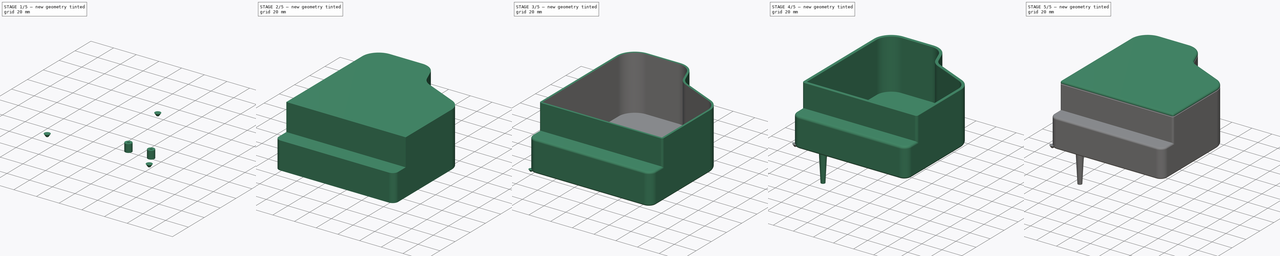
[diagram: build sequence overview — one tinted view per stage of 5, left to right]
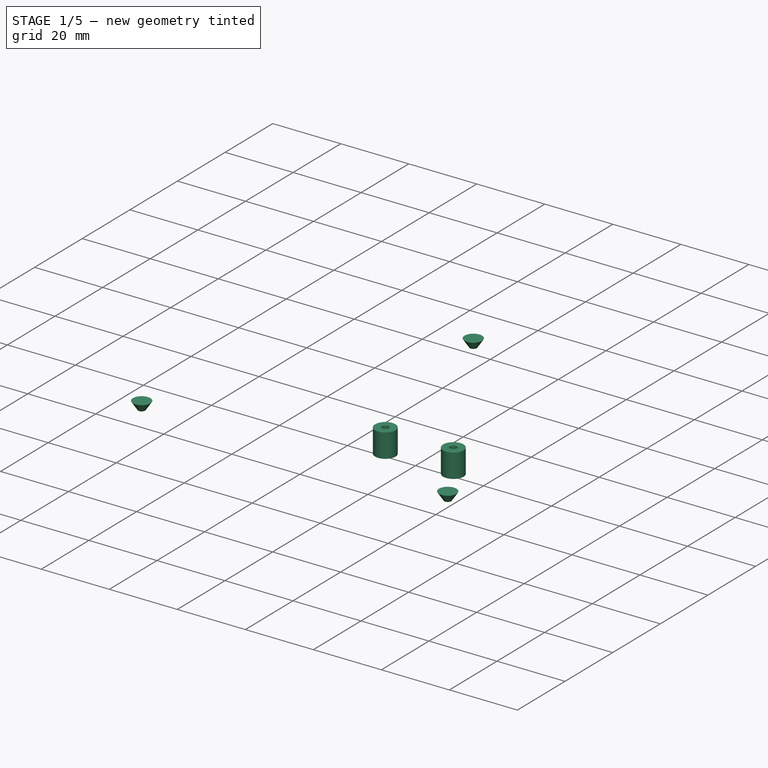
[diagram: stage 1 of 5 — iso view after this stage's code; geometry added in this stage tinted green]
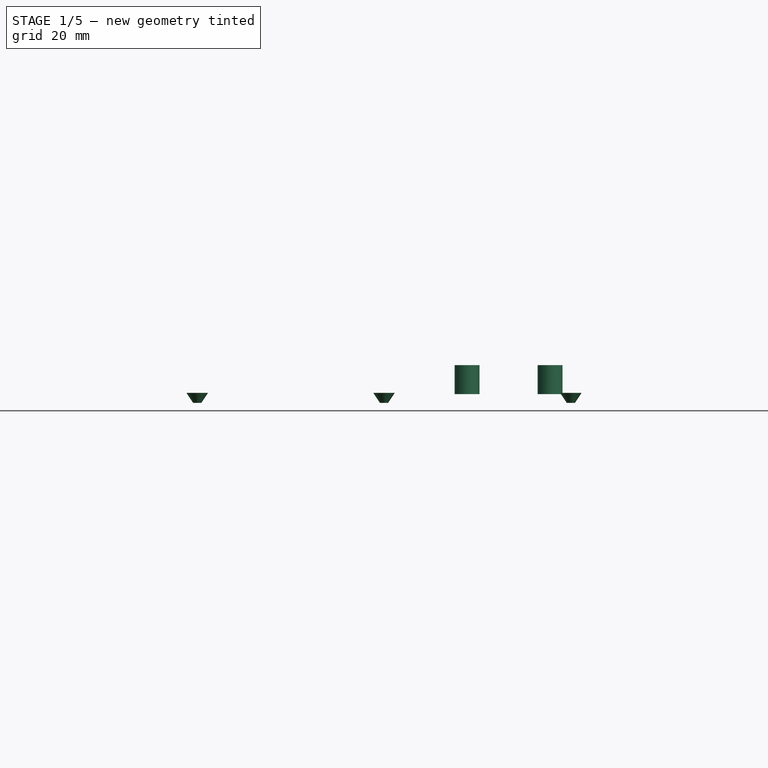
[diagram: stage 1 of 5 — front view after this stage's code; geometry added in this stage tinted green]
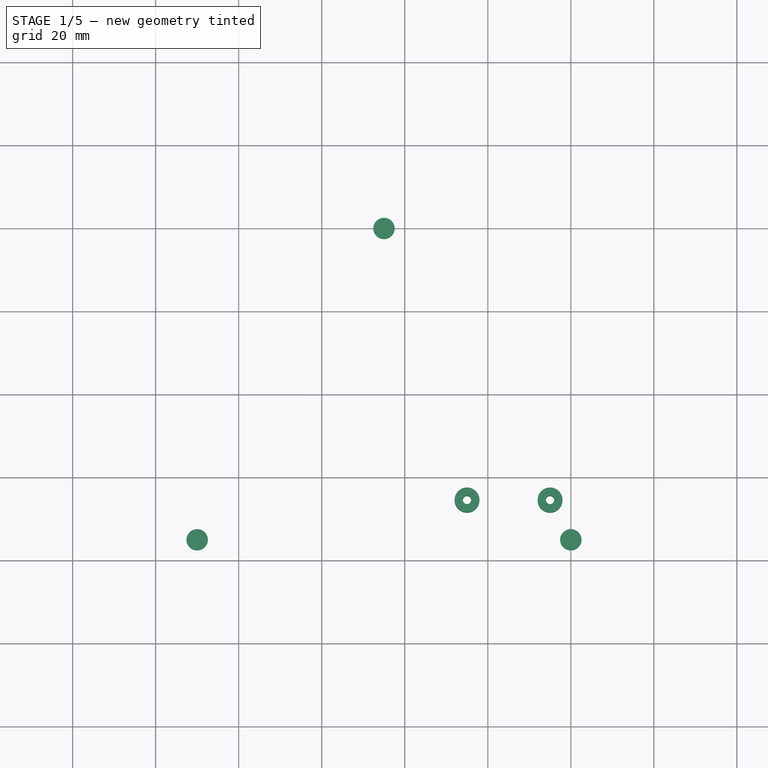
[diagram: stage 1 of 5 — top view after this stage's code; geometry added in this stage tinted green]
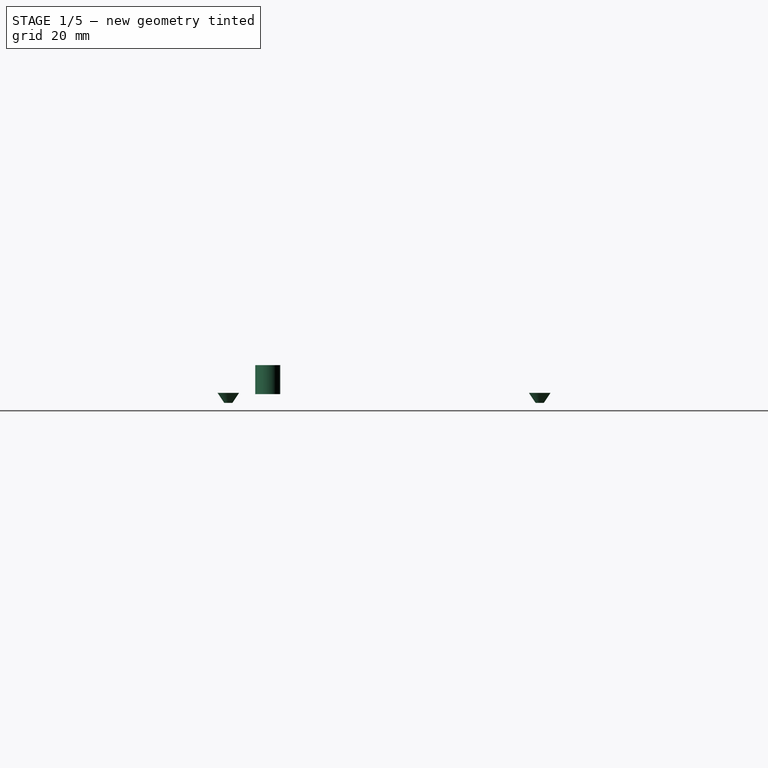
[diagram: stage 1 of 5 — right view after this stage's code; geometry added in this stage tinted green]
FCSTD DOCUMENT  (FreeCAD 0.15R4671 (Git))
Label: piano
License: CreativeCommons Attribution-ShareAlike
LicenseURL: http://creativecommons.org/licenses/by-sa/4.0/
objects: Part::Feature×8, Part::Cut×7, Part::Cylinder×4, PartDesign::Fillet×3, Part::Offset×3, Part::Cone×2, Part::MultiFuse×2, Sketcher::SketchObject×1, PartDesign::Pad×1, Part::Box×1, Part::Thickness×1, Part::Extrusion×1, Part::FeaturePython×1, App::DocumentObjectGroup×1
note: 36 computed .brp shape members not serialized (recipe doc carries the construction recipe); baked Part::Feature solids carry a one-line shape summary decoded from their .brp

FEATURE [Part::Feature] Offset002001  label="Vaciado cabeza torn pata delantera izquierda"
  Placement = pos=(10,25,0) rot=(0,0,1;0rad)
  shape: bbox 5.173 x 5.173 x 2.402 mm, 3 faces (baked)
FEATURE [Part::Feature] Offset002002  label="Vaciado cabeza torn pata delantera derecha"
  Placement = pos=(100,25,0) rot=(0,0,1;0rad)
  shape: bbox 5.173 x 5.173 x 2.402 mm, 3 faces (baked)
FEATURE [Part::Feature] Offset002003  label="Vaciado cabeza torn pata trasera"
  Placement = pos=(55,100,0) rot=(0,0,1;0rad)
  shape: bbox 5.173 x 5.173 x 2.402 mm, 3 faces (baked)
FEATURE [Part::MultiFuse] Fusion  label="Avellanados tornillos fondo caja piano"
  Shapes = -> [Offset002001,Offset002002,Offset002003]
FEATURE [Part::Cylinder] Cylinder002  label="Exterior soporte zumbador"
  Angle = 360
  Height = 7
  Radius = 3
FEATURE [Part::Cylinder] Cylinder003  label="Vaciado interior soporte zumbador"
  Angle = 360
  Height = 10
  Placement = pos=(0,0,-2) rot=(0,0,1;0rad)
  Radius = 1
FEATURE [Part::Cut] Cut003005  label="Master soporte zumbador"
  Base = -> Cylinder002
  Tool = -> Cylinder003
FEATURE [Part::FeaturePython] Array  label="Pareja de soportes y atornillado del zumbador"  # Draft array (typed FeaturePython)
  Angle = 360
  ArrayType = 0
  Axis = (0,0,1)
  Base = -> Cut003005
  Center = (0,0,0)
  Fuse = false
  IntervalAxis = (0,0,0)
  IntervalX = (20,0,0)
  IntervalY = (0,1,0)
  IntervalZ = (0,0,0)
  NumberPolar = 1
  NumberX = 2
  NumberY = 1
  NumberZ = 1
  Placement = pos=(75,34.5,0) rot=(0,0,1;0rad)
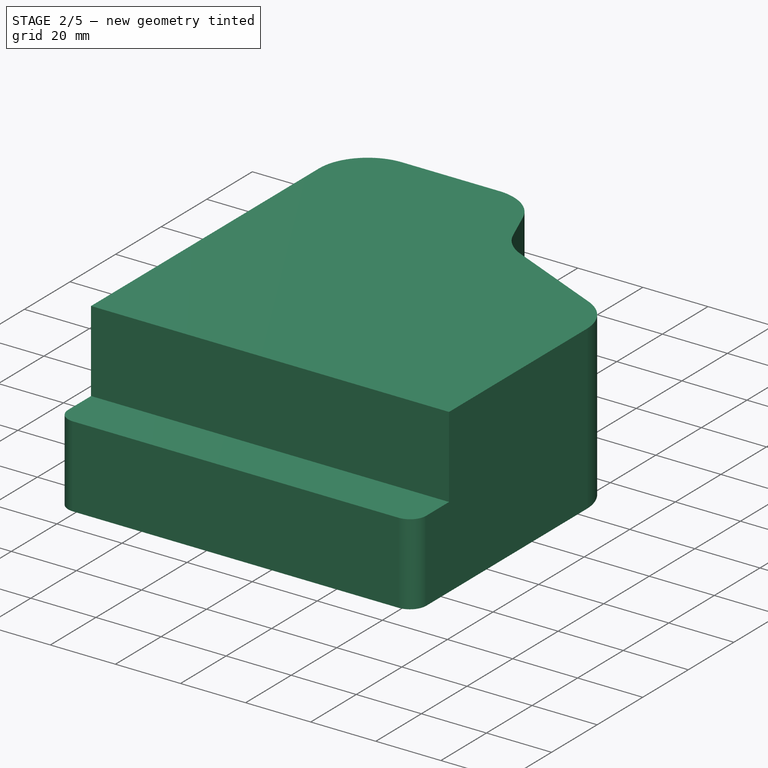
[diagram: stage 2 of 5 — iso view after this stage's code; geometry added in this stage tinted green]
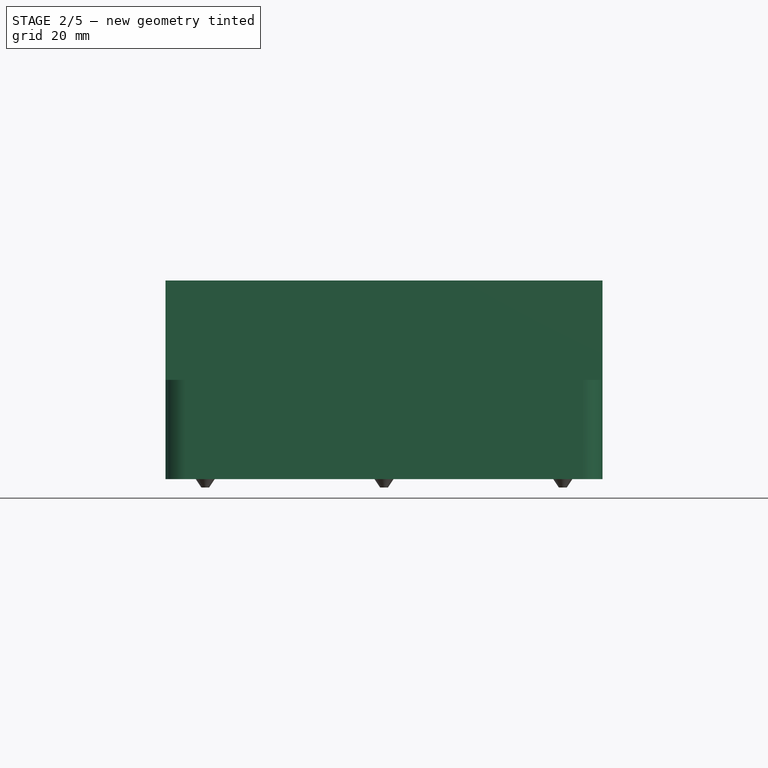
[diagram: stage 2 of 5 — front view after this stage's code; geometry added in this stage tinted green]
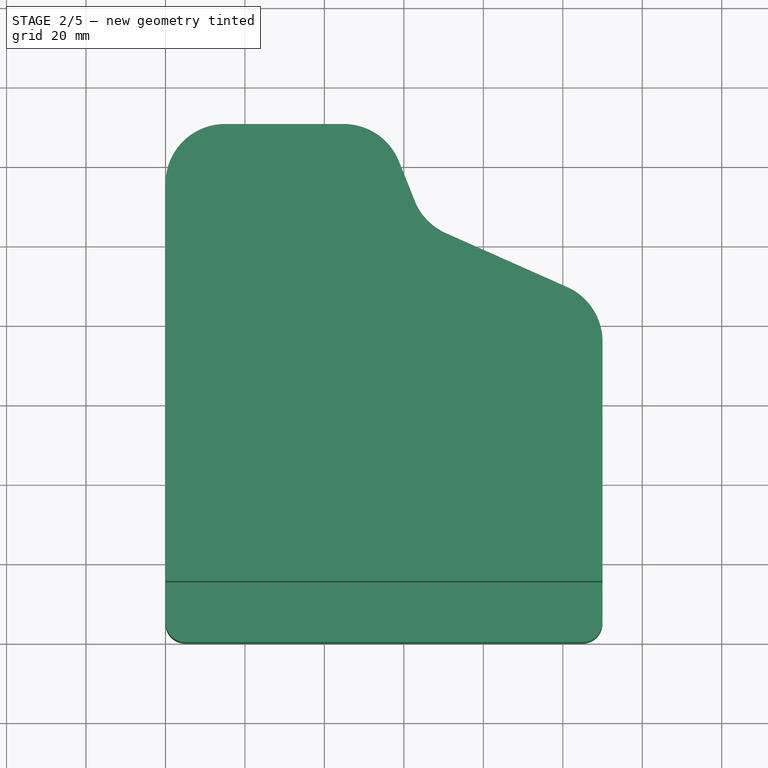
[diagram: stage 2 of 5 — top view after this stage's code; geometry added in this stage tinted green]
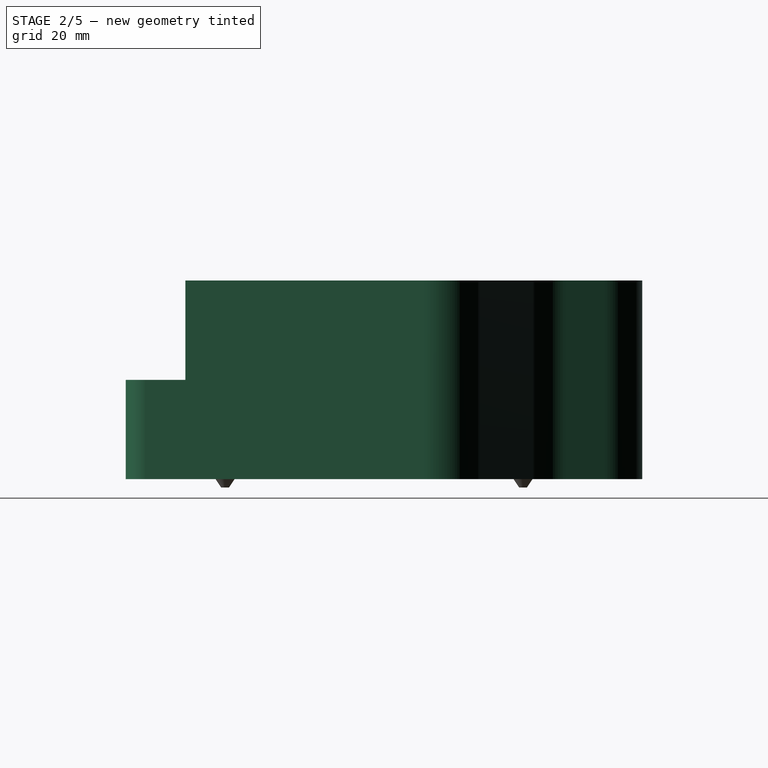
[diagram: stage 2 of 5 — right view after this stage's code; geometry added in this stage tinted green]
FEATURE [Sketcher::SketchObject] Sketch  label="Planta diseño del piano"
  sketch-geometry (6):
    g0: LineSegment StartX=0 StartY=0 StartZ=0 EndX=0 EndY=130 EndZ=0
    g1: LineSegment StartX=0 StartY=130 StartZ=0 EndX=55 EndY=130 EndZ=0
    g2: LineSegment StartX=55 StartY=130 StartZ=0 EndX=65 EndY=105 EndZ=0
    g3: LineSegment StartX=65 StartY=105 StartZ=0 EndX=110 EndY=85 EndZ=0
    g4: LineSegment StartX=110 StartY=85 StartZ=0 EndX=110 EndY=0 EndZ=0
    g5: LineSegment StartX=110 StartY=0 StartZ=0 EndX=0 EndY=0 EndZ=0
  constraints (17):
    c: Coincident(g0,g1)
    c: Coincident(g1,g2)
    c: Coincident(g2,g3)
    c: Coincident(g3,g4)
    c: Coincident(g4,g5)
    c: Coincident(g0,g5)
    c: Coincident(g0,g-1)
    c: Vertical(g0)
    c: Vertical(g4)
    c: Horizontal(g1)
    c: Horizontal(g5)
    c: Distance(g0) = 130
    c: Distance(g4) = 85
    c: Distance(g1) = 55
    c: Distance(g5) = 110
    c: DistanceX(g-1,g2) = 65
    c: DistanceY(g-1,g2) = 105
FEATURE [PartDesign::Pad] Pad  label="Caja del Piano extruido"
  Length = 50
  Length2 = 100
  Sketch = -> Sketch
  Type = 0
FEATURE [PartDesign::Fillet] Fillet  label="Redondeos 15 mm"
  Base = -> Pad [Edge11,Edge8,Edge5,Edge2]
  Radius = 15
FEATURE [PartDesign::Fillet] Fillet001  label="Caja del piano maciza sin teclado"
  Base = -> Fillet [Edge3,Edge16]
  Radius = 5
FEATURE [Part::Box] Box  label="Recorte Zona del teclado"
  Height = 30
  Length = 120
  Placement = pos=(-5,-5,25) rot=(0,0,1;0rad)
  Width = 20
FEATURE [Part::Cut] Cut  label="Caja Piano - Zona del teclado"
  Base = -> Fillet001
  Tool = -> Box
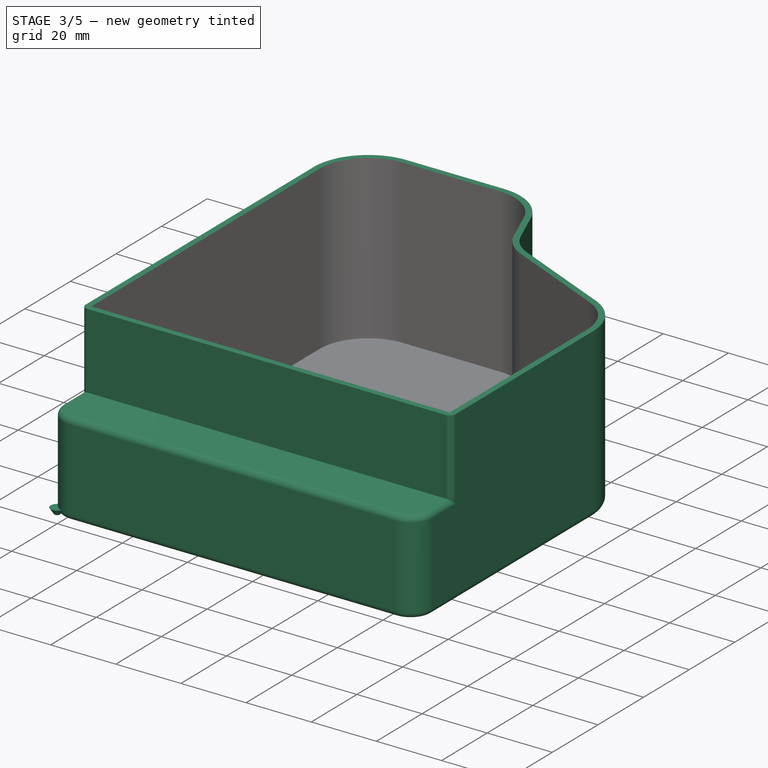
[diagram: stage 3 of 5 — iso view after this stage's code; geometry added in this stage tinted green]
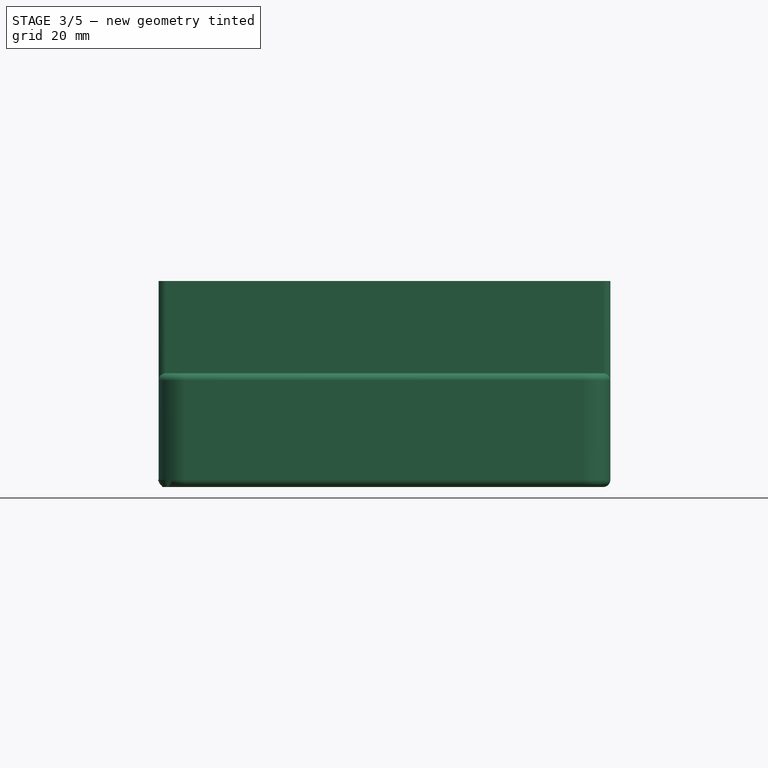
[diagram: stage 3 of 5 — front view after this stage's code; geometry added in this stage tinted green]
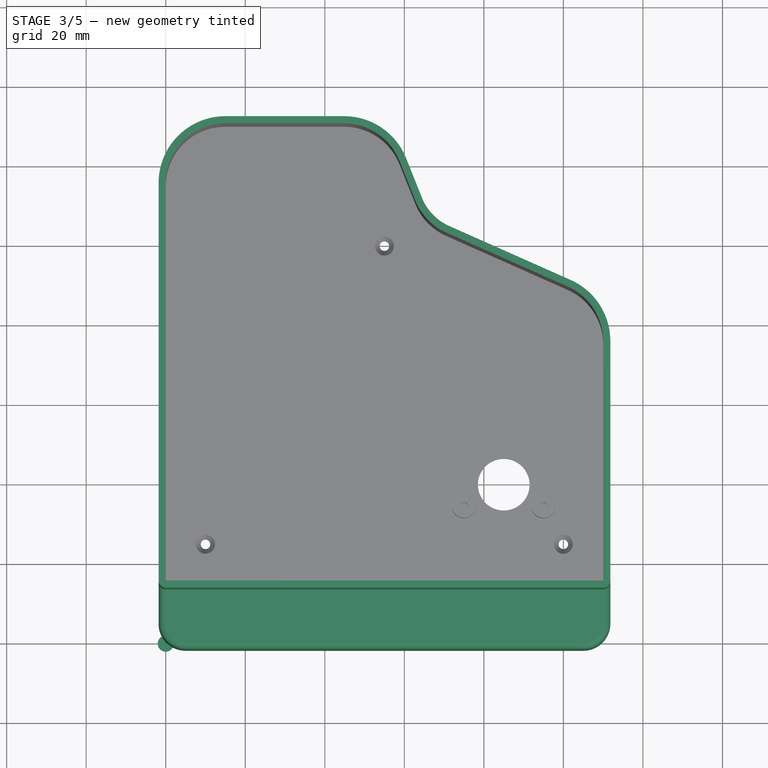
[diagram: stage 3 of 5 — top view after this stage's code; geometry added in this stage tinted green]
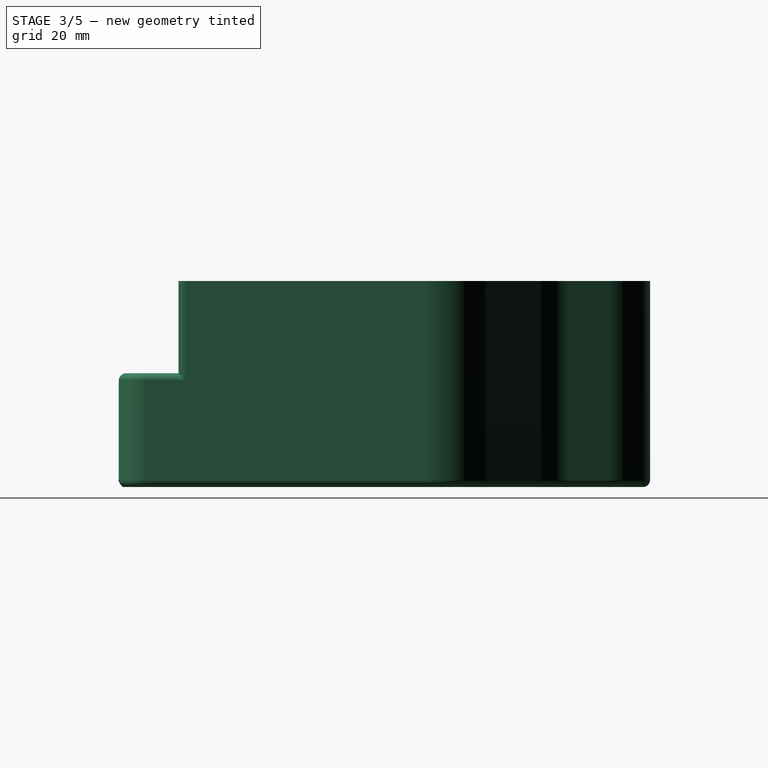
[diagram: stage 3 of 5 — right view after this stage's code; geometry added in this stage tinted green]
FEATURE [Part::Thickness] Thickness  label="Caja del piano Vaciada"
  Faces = -> Cut [Face4]
  Intersection = false
  Join = 0
  Mode = 0
  SelfIntersection = false
  Value = 1.8
FEATURE [Part::Cone] Cone001  label="Master Cono cabeza tornillo M2"
  Angle = 360
  Height = 1.8
  Placement = pos=(0,0,-1.8) rot=(0,0,1;0rad)
  Radius1 = 0.825
  Radius2 = 2.025
FEATURE [Part::Cut] Cut003004  label="Caja del piano + avellanados tornillos patas"
  Base = -> Thickness
  Tool = -> Fusion
FEATURE [Part::Cylinder] Cylinder001  label="Vaciado zumbador"
  Angle = 360
  Height = 10
  Placement = pos=(85,40,-5) rot=(0,0,1;0rad)
  Radius = 6.5
FEATURE [Part::MultiFuse] Fusion001  label="Caja del piano + pareja soportes zumbador"
  Shapes = -> [Cut003004,Array]
FEATURE [Part::Cut] Cut003006  label="Master caja del piano con hueco para paso del zumbador"
  Base = -> Fusion001
  Tool = -> Cylinder001
FEATURE [App::DocumentObjectGroup] Grupo  label="Master despiece del piano"
  Group = -> [Cut003006,Cut003,Offset002,Cut002,Pad,Fillet,Extrude]
FEATURE [Part::Feature] Cut003006001  label="Caja del piano"
  shape: bbox 116.4 x 135.5 x 51.8 mm, 62 faces (baked)
FEATURE [Part::Feature] Cut002001  label="Tapa del piano"
  shape: bbox 116.4 x 120 x 3.802 mm, 59 faces (baked)
FEATURE [Part::Feature] Cut003003001  label="Pata trasera"
  Placement = pos=(55,100,-41.8) rot=(0,0,1;0rad)
  shape: bbox 8 x 8 x 40 mm, 5 faces (baked)
FEATURE [Part::Feature] Cut003002001  label="Pata delantera derecha"
  Placement = pos=(100,25,-41.8) rot=(0,0,1;0rad)
  shape: bbox 8 x 8 x 40 mm, 5 faces (baked)
FEATURE [Part::Feature] Cut003001001  label="Pata delatera izquierda"
  Placement = pos=(10,25,-41.8) rot=(0,0,1;0rad)
  shape: bbox 8 x 8 x 40 mm, 5 faces (baked)
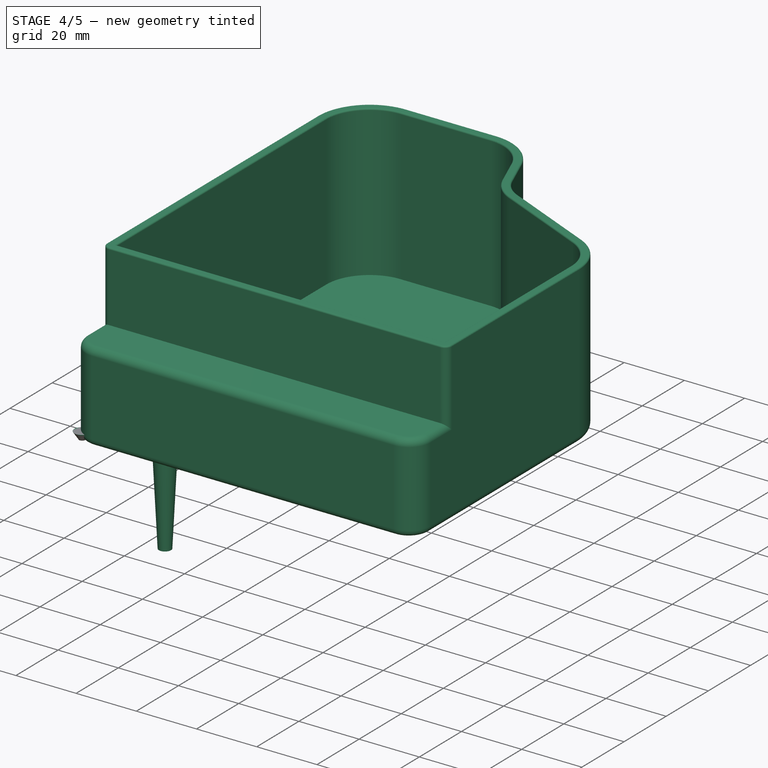
[diagram: stage 4 of 5 — iso view after this stage's code; geometry added in this stage tinted green]
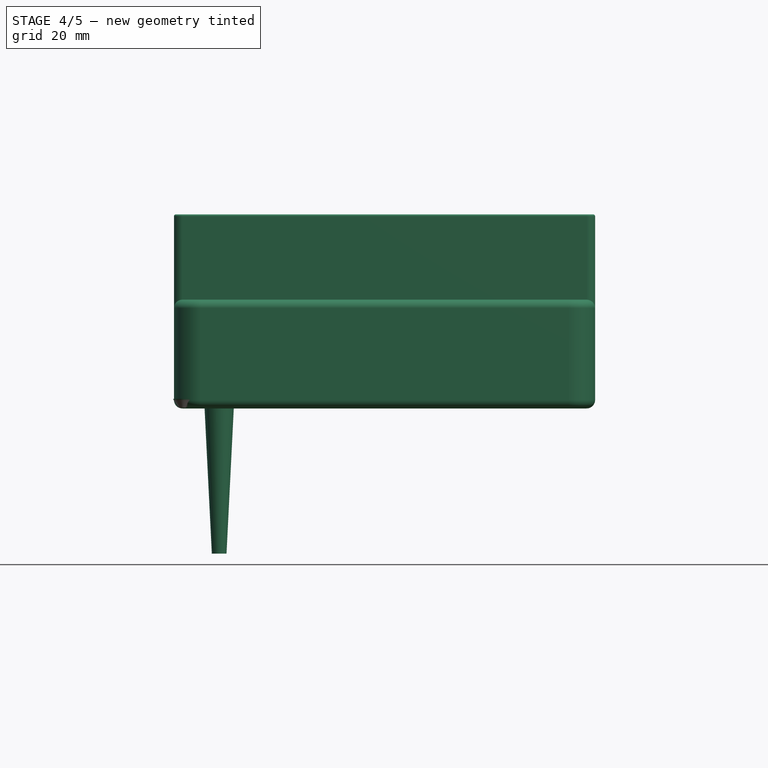
[diagram: stage 4 of 5 — front view after this stage's code; geometry added in this stage tinted green]
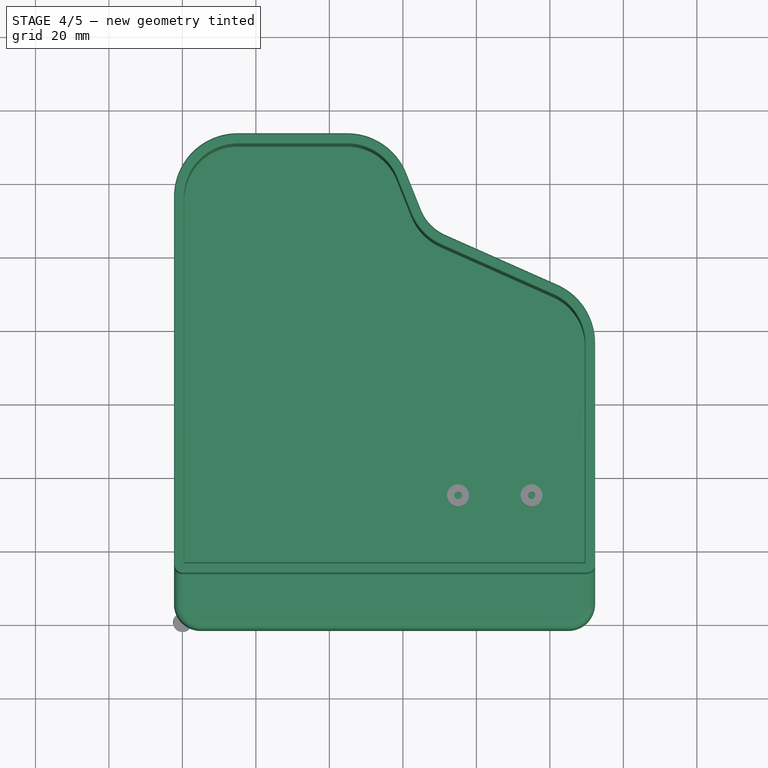
[diagram: stage 4 of 5 — top view after this stage's code; geometry added in this stage tinted green]
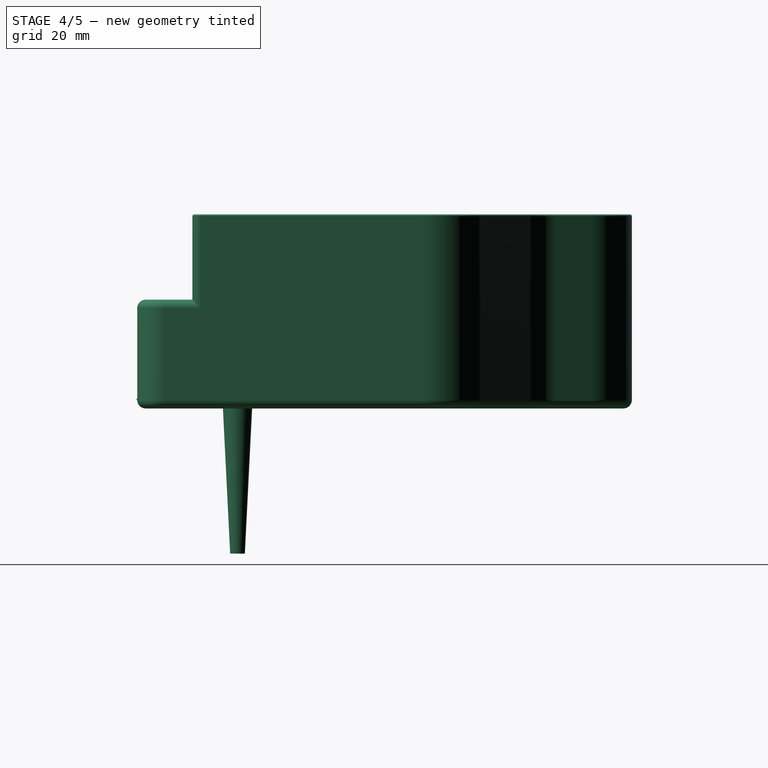
[diagram: stage 4 of 5 — right view after this stage's code; geometry added in this stage tinted green]
FEATURE [Part::Offset] Offset001  label="Offset caja del piano"
  Fill = false
  Intersection = false
  Join = 0
  Mode = 0
  SelfIntersection = false
  Source = -> Thickness
  Value = 0.5
FEATURE [Part::Cone] Cone  label="Cono macizo de la Pata"
  Angle = 360
  Height = 40
  Radius1 = 2
  Radius2 = 4
FEATURE [Part::Cylinder] Cylinder  label="taladro tornillo cabeza conica M2*10"
  Angle = 360
  Height = 10
  Placement = pos=(0,0,31) rot=(0,0,1;0rad)
  Radius = 1
FEATURE [Part::Cut] Cut003  label="Master Pata"
  Base = -> Cone
  Placement = pos=(10,25,-41.8) rot=(0,0,1;0rad)
  Tool = -> Cylinder
FEATURE [Part::Offset] Offset002  label="Master Offset cabeza tornillo M2"
  Fill = false
  Intersection = false
  Join = 2
  Mode = 0
  SelfIntersection = false
  Source = -> Cone001
  Value = 0.3
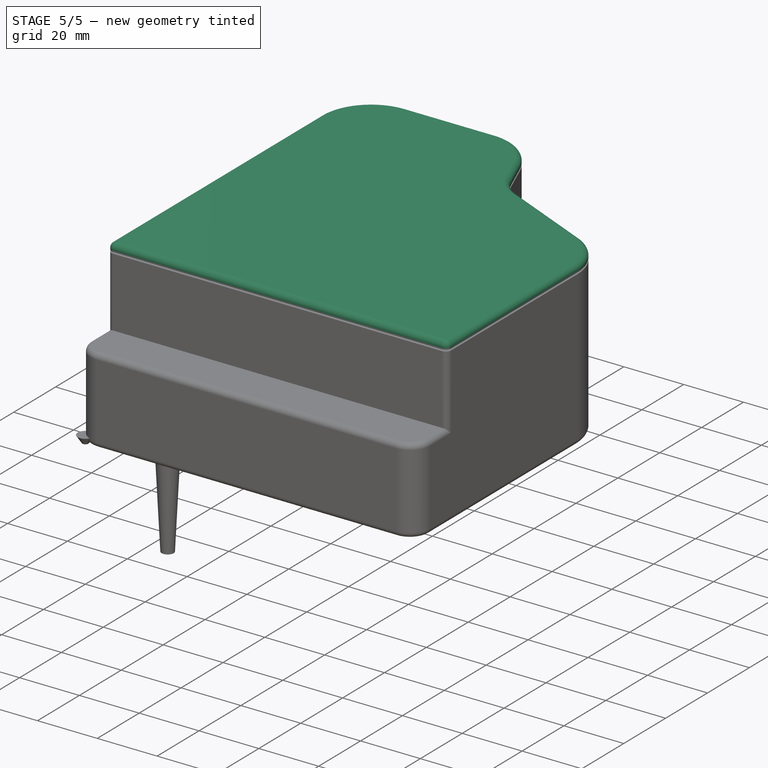
[diagram: stage 5 of 5 — iso view after this stage's code; geometry added in this stage tinted green]
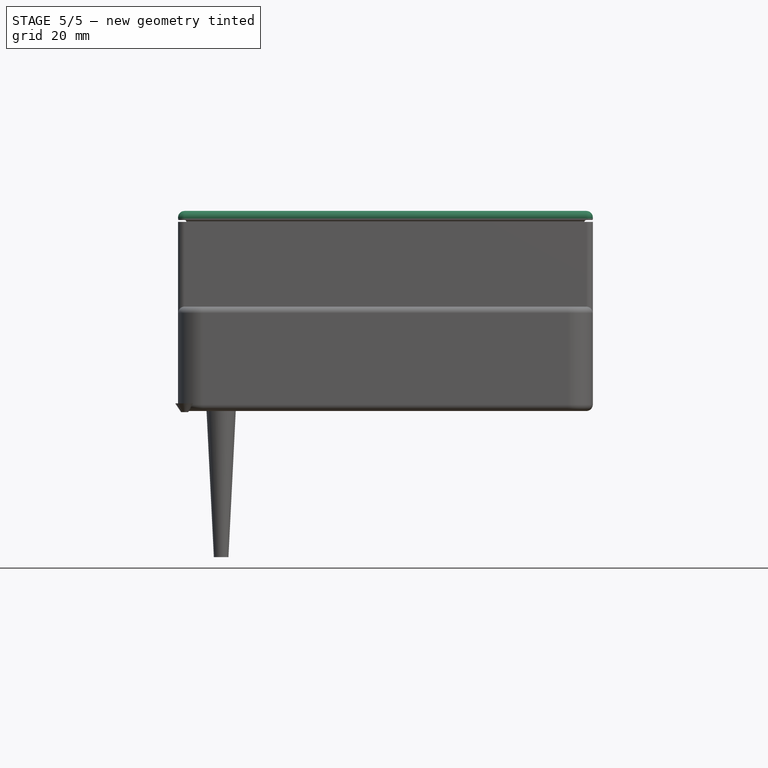
[diagram: stage 5 of 5 — front view after this stage's code; geometry added in this stage tinted green]
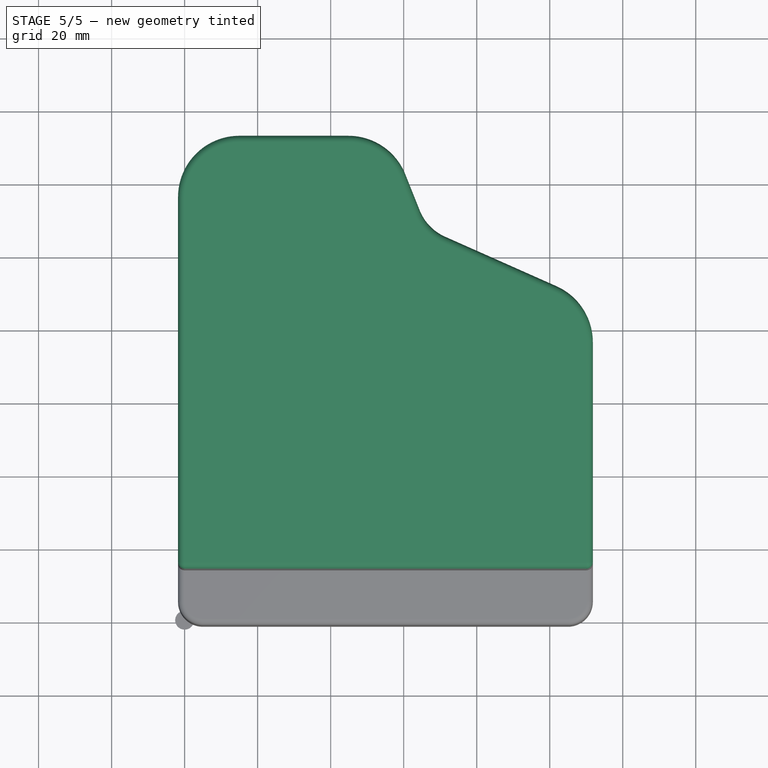
[diagram: stage 5 of 5 — top view after this stage's code; geometry added in this stage tinted green]
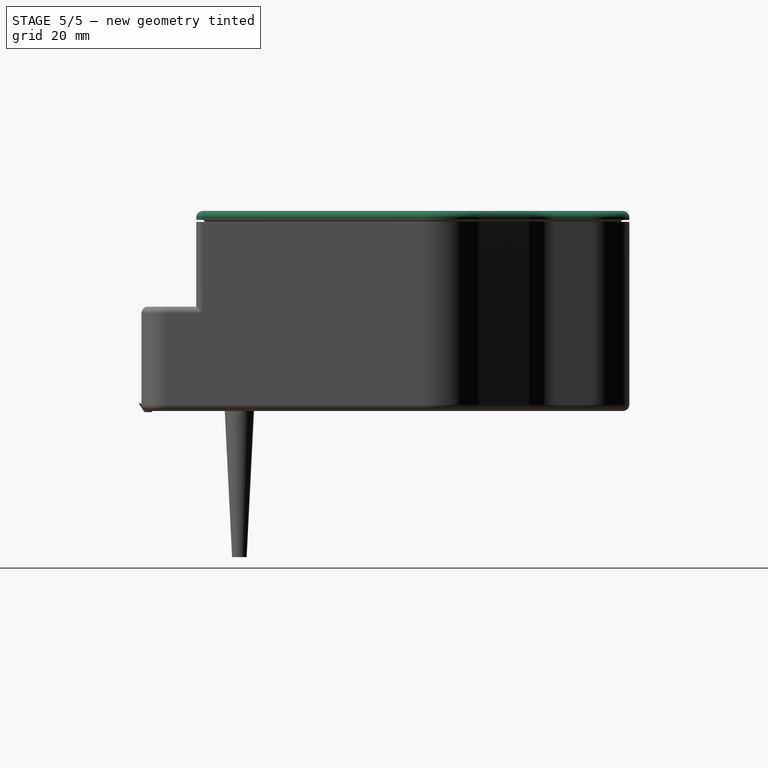
[diagram: stage 5 of 5 — right view after this stage's code; geometry added in this stage tinted green]
FEATURE [Part::Extrusion] Extrude  label="Tapa piano primitiva"
  Base = -> Sketch
  Dir = (0,0,0.2)
  Placement = pos=(0,0,50) rot=(0,0,1;0rad)
  Solid = true
FEATURE [PartDesign::Fillet] Fillet002  label="Redondeo 15 mm tapa"
  Base = -> Extrude [Edge11,Edge8,Edge5,Edge2]
  Placement = pos=(0,0,50) rot=(0,0,1;0rad)
  Radius = 15
FEATURE [Part::Cut] Cut001  label="Tapa - Zona teclado"
  Base = -> Fillet002
  Tool = -> Box
FEATURE [Part::Offset] Offset  label="Offset de la Tapa"
  Fill = false
  Intersection = false
  Join = 0
  Mode = 0
  Placement = pos=(0,0,1) rot=(0,0,1;0rad)
  SelfIntersection = false
  Source = -> Cut001
  Value = 1.8
FEATURE [Part::Cut] Cut002  label="Master Tapa con pestaña sujeccion a la caja del piano"
  Base = -> Offset
  Tool = -> Offset001
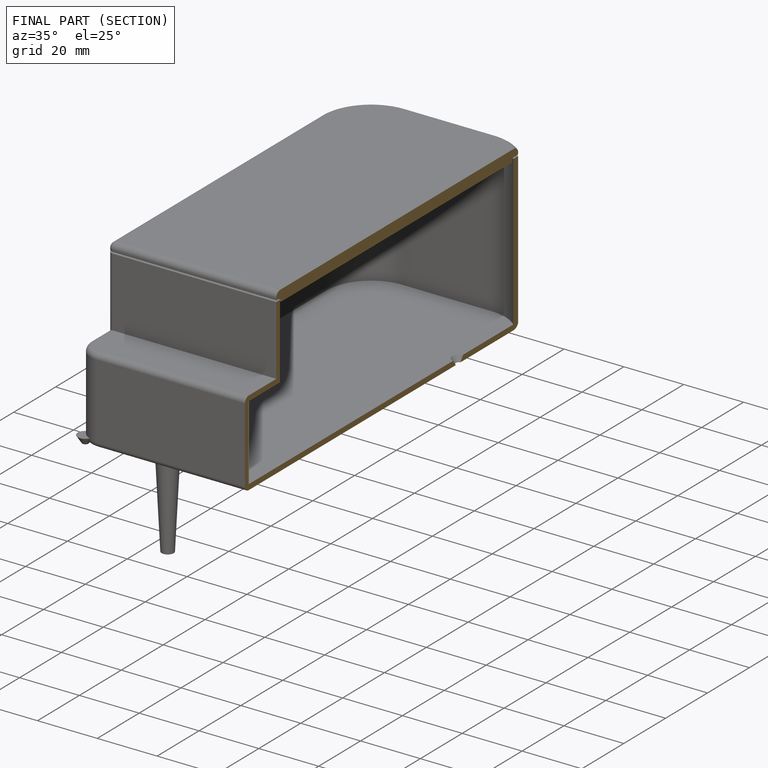
[diagram: finished part — half-section view (interior)]
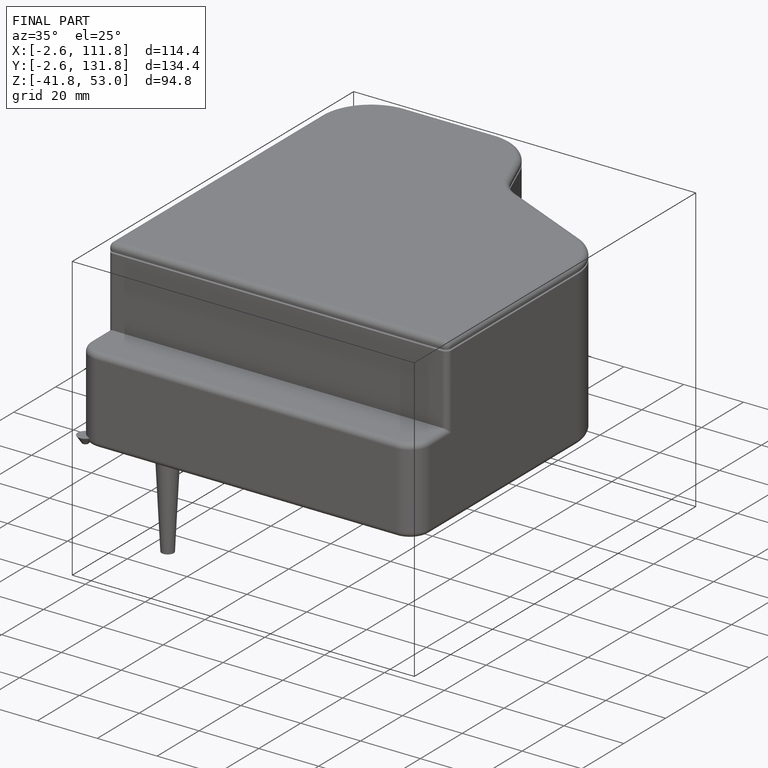
[diagram: finished part — iso view with bounding-box wireframe]
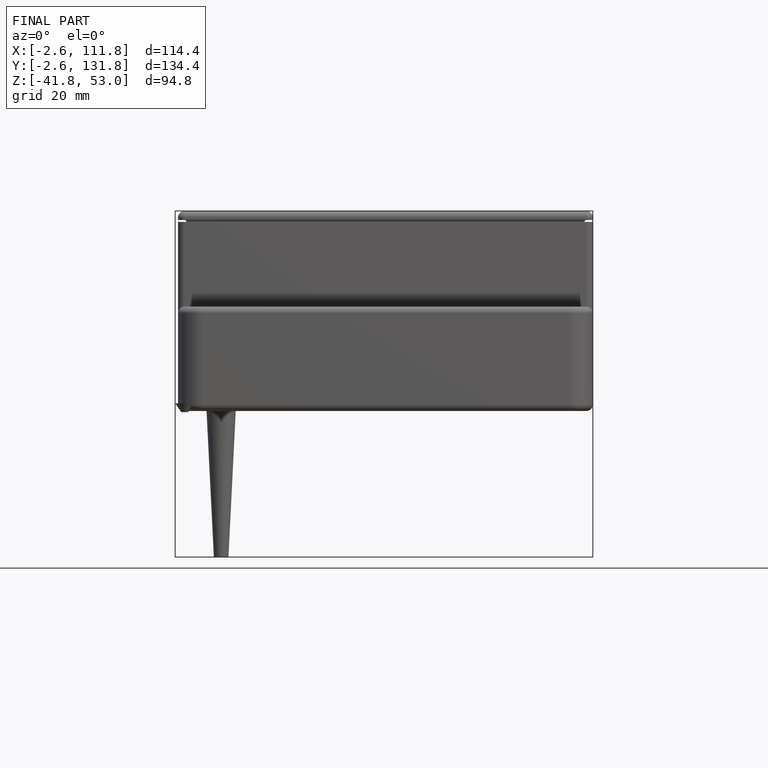
[diagram: finished part — front view with bounding-box wireframe]
